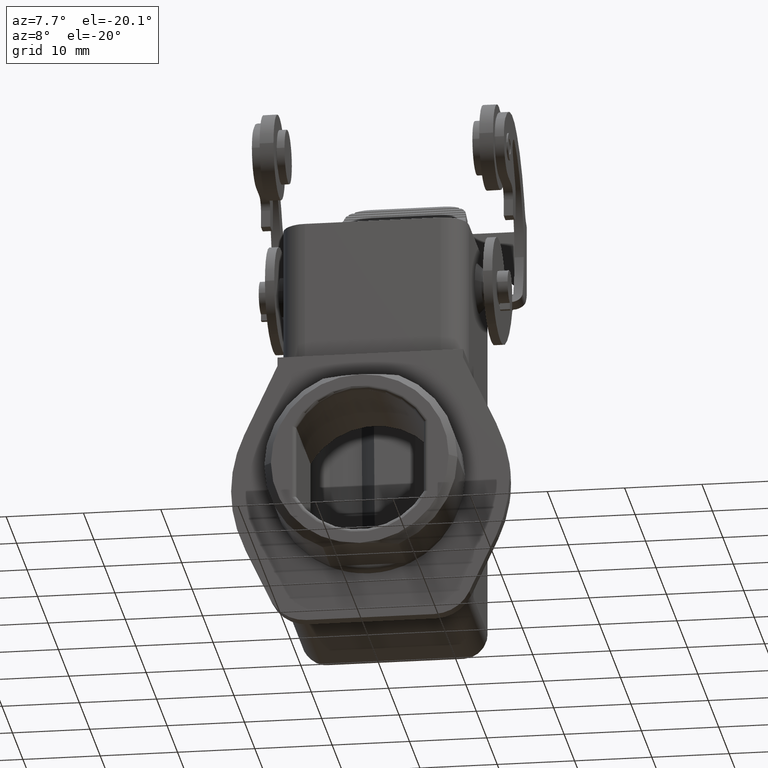
[diagram: clean part render]
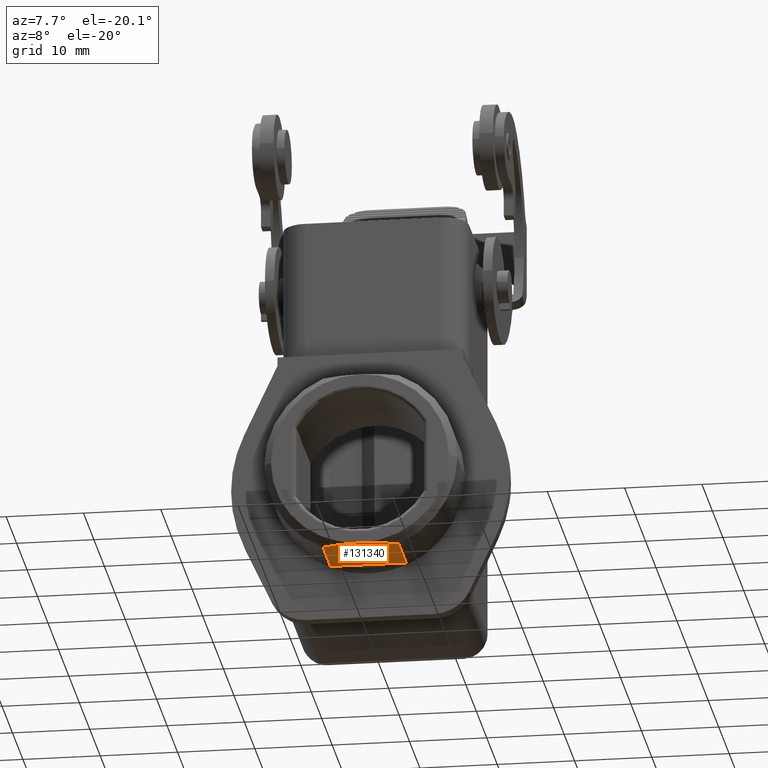
[diagram: same view with one face highlighted and labeled with its STEP entity id]
A machine part, auxiliary view. The second image highlights one B-rep face of the part: STEP entity #131340.
In plain terms, the highlighted planar face has unit normal (0, 0, -1).
Its self-contained STEP definition (entity closure, byte-faithful):
#110460=CARTESIAN_POINT('',(55.6223464855664,18.155443,-22.5000000938587
));
#110470=VERTEX_POINT('',#110460);
#110650=CARTESIAN_POINT('',(55.6223464855664,25.355443,-22.5000000938587
));
#110660=VERTEX_POINT('',#110650);
#110690=CARTESIAN_POINT('',(55.6223464855664,25.53544615,
-22.5000000938588));
#110700=DIRECTION('',(0.,-1.,0.));
#110710=VECTOR('',#110700,1.);
#110720=LINE('',#110690,#110710);
#110730=EDGE_CURVE('',#110660,#110470,#110720,.T.);
#130520=CARTESIAN_POINT('',(45.5766966359034,16.9353226324312,
-22.5000000938587));
#130530=DIRECTION('',(0.,0.,-1.));
#130540=DIRECTION('',(-1.,0.,-0.));
#130550=AXIS2_PLACEMENT_3D('',#130520,#130530,#130540);
#130560=PLANE('',#130550);
#130570=CARTESIAN_POINT('',(0.,25.355443,-22.5000000938587));
#130580=DIRECTION('',(1.,-0.,0.));
#130590=VECTOR('',#130580,1.);
#130600=LINE('',#130570,#130590);
#130610=CARTESIAN_POINT('',(45.8243875144336,25.355443,-22.5000000938587
));
#130620=VERTEX_POINT('',#130610);
#130630=EDGE_CURVE('',#130620,#110660,#130600,.T.);
#130640=ORIENTED_EDGE('',*,*,#130630,.T.);
#130650=CARTESIAN_POINT('',(45.8243875144336,25.53544615,
-22.5000000938588));
#130660=DIRECTION('',(0.,-1.,0.));
#130670=VECTOR('',#130660,1.);
#130680=LINE('',#130650,#130670);
#130690=CARTESIAN_POINT('',(45.8243875144336,18.155443,-22.5000000938587
));
#130700=VERTEX_POINT('',#130690);
#130710=EDGE_CURVE('',#130620,#130700,#130680,.T.);
#130720=ORIENTED_EDGE('',*,*,#130710,.F.);
#130730=CARTESIAN_POINT('',(50.7233670000001,17.155443,-22.5000000938587
));
#130740=CARTESIAN_POINT('',(50.6180437117394,17.155443,-22.5000000938587
));
#130750=CARTESIAN_POINT('',(50.5127129999162,17.1568907338084,
-22.5000000938587));
#130760=CARTESIAN_POINT('',(50.3021566374851,17.1626730329106,
-22.5000000938587));
#130770=CARTESIAN_POINT('',(50.1969313758444,17.1670075713359,
-22.5000000938587));
#130780=CARTESIAN_POINT('',(49.9867046962506,17.1785352825323,
-22.5000000938587));
#130790=CARTESIAN_POINT('',(49.8817036500835,17.1857284008985,
-22.5000000938587));
#130800=CARTESIAN_POINT('',(49.6720399166907,17.2029263989715,
-22.5000000938587));
#130810=CARTESIAN_POINT('',(49.5673775736549,17.2129312004244,
-22.5000000938587));
#130820=CARTESIAN_POINT('',(49.3584992675122,17.2356885005063,
-22.5000000938587));
#130830=CARTESIAN_POINT('',(49.2542836127377,17.2484409020546,
-22.5000000938587));
#130840=CARTESIAN_POINT('',(49.0463981672295,17.2766141455567,
-22.5000000938587));
#130850=CARTESIAN_POINT('',(48.9427286432746,17.2920348774079,
-22.5000000938587));
#130860=CARTESIAN_POINT('',(48.6326298871405,17.3421685741657,
-22.5000000938587));
#130870=CARTESIAN_POINT('',(48.4273379480722,17.3807144512656,
-22.5000000938587));
#130880=CARTESIAN_POINT('',(48.0191422990184,17.4674300463916,
-22.5000000938587));
#130890=CARTESIAN_POINT('',(47.8159387763015,17.5156727299962,
-22.5000000938587));
#130900=CARTESIAN_POINT('',(47.4115896976303,17.6212183353656,
-22.5000000938587));
#130910=CARTESIAN_POINT('',(47.2104458143226,17.6785200749335,
-22.5000000938587));
#130920=CARTESIAN_POINT('',(46.8103964853496,17.8014343296201,
-22.5000000938587));
#130930=CARTESIAN_POINT('',(46.6114918589254,17.867045879433,
-22.5000000938587));
#130940=CARTESIAN_POINT('',(46.2160918443598,18.0057975310961,
-22.5000000938587));
#130950=CARTESIAN_POINT('',(46.0195966604205,18.0789369518706,
-22.5000000938587));
#130960=CARTESIAN_POINT('',(45.8243875144336,18.155443,-22.5000000938587
));
#130970=B_SPLINE_CURVE_WITH_KNOTS('',3,(#130730,#130740,#130750,#130760,
#130770,#130780,#130790,#130800,#130810,#130820,#130830,#130840,#130850,
#130860,#130870,#130880,#130890,#130900,#130910,#130920,#130930,#130940,
#130950,#130960),.UNSPECIFIED.,.F.,.F.,(4,2,2,2,2,2,2,2,2,2,2,4),(0.,
0.315981809269663,0.631885416014997,0.947587740386869,1.26296829145767,
1.57791134567185,1.8923083841752,2.51922618663112,3.1457241750264,
3.77307246258338,4.4012914020533,5.03014225467061),.UNSPECIFIED.);
#130980=CARTESIAN_POINT('',(50.7233670000001,17.155443,-22.5000000938587
));
#130990=VERTEX_POINT('',#130980);
#131000=EDGE_CURVE('',#130990,#130700,#130970,.T.);
#131010=ORIENTED_EDGE('',*,*,#131000,.T.);
#131020=CARTESIAN_POINT('',(55.6223464855664,18.155443,-22.5000000938587
));
#131030=CARTESIAN_POINT('',(55.4270183321664,18.0788903106831,
-22.5000000938587));
#131040=CARTESIAN_POINT('',(55.2303843931778,18.0057013499886,
-22.5000000938588));
#131050=CARTESIAN_POINT('',(54.8346880583029,17.8668571839463,
-22.5000000938588));
#131060=CARTESIAN_POINT('',(54.6356259359848,17.8012027186816,
-22.5000000938587));
#131070=CARTESIAN_POINT('',(54.2352655442392,17.6782189070248,
-22.5000000938587));
#131080=CARTESIAN_POINT('',(54.0339682057835,17.6208905946407,
-22.5000000938587));
#131090=CARTESIAN_POINT('',(53.6293406479991,17.5153139323387,
-22.5000000938587));
#131100=CARTESIAN_POINT('',(53.4260122629977,17.4670668342911,
-22.5000000938566));
#131110=CARTESIAN_POINT('',(53.1196525206581,17.4020265820659,
-22.5000000938566));
#131120=CARTESIAN_POINT('',(53.0173050179206,17.381567729166,
-22.5000000938588));
#131130=CARTESIAN_POINT('',(52.8121985723977,17.343174622977,
-22.5000000938588));
#131140=CARTESIAN_POINT('',(52.7093075399874,17.3252152125388,
-22.5000000938587));
#131150=CARTESIAN_POINT('',(52.5028683798284,17.291862086083,
-22.5000000938587));
#131160=CARTESIAN_POINT('',(52.3993264778966,17.2764695704059,
-22.5000000938587));
#131170=CARTESIAN_POINT('',(52.1916790670939,17.248344221858,
-22.5000000938587));
#131180=CARTESIAN_POINT('',(52.0875738184314,17.2356115024837,
-22.5000000938587));
#131190=CARTESIAN_POINT('',(51.8788942006523,17.2128858591603,
-22.5000000938587));
#131200=CARTESIAN_POINT('',(51.7743201342187,17.2028930362683,
-22.5000000938588));
#131210=CARTESIAN_POINT('',(51.5648070971833,17.1857127847645,
-22.5000000938588));
#131220=CARTESIAN_POINT('',(51.4598684664406,17.1785254388973,
-22.5000000938587));
#131230=CARTESIAN_POINT('',(51.2497381503096,17.1670050611353,
-22.5000000938587));
#131240=CARTESIAN_POINT('',(51.1445468338831,17.1626720885269,
-22.5000000938587));
#131250=CARTESIAN_POINT('',(50.934028362201,17.1568910419661,
-22.5000000938587));
#131260=CARTESIAN_POINT('',(50.8287015944632,17.1554429999933,
-22.5000000938587));
#131270=CARTESIAN_POINT('',(50.7233670000001,17.155443,-22.5000000938587
));
#131280=B_SPLINE_CURVE_WITH_KNOTS('',3,(#131020,#131030,#131040,#131050,
#131060,#131070,#131080,#131090,#131100,#131110,#131120,#131130,#131140,
#131150,#131160,#131170,#131180,#131190,#131200,#131210,#131220,#131230,
#131240,#131250,#131260,#131270),.UNSPECIFIED.,.F.,.F.,(4,2,2,2,2,2,2,2,
2,2,2,2,4),(0.,0.629281119191105,1.25797707285187,1.88577775296097,
2.51263115289653,2.82574303573,3.13907369355974,3.45308256448213,
3.7676920095986,4.08280724869928,4.39832277695503,4.71412513676614,
5.03009534798825),.UNSPECIFIED.);
#131290=EDGE_CURVE('',#110470,#130990,#131280,.T.);
#131300=ORIENTED_EDGE('',*,*,#131290,.T.);
#131310=ORIENTED_EDGE('',*,*,#110730,.T.);
#131320=EDGE_LOOP('',(#131310,#131300,#131010,#130720,#130640));
#131330=FACE_OUTER_BOUND('',#131320,.T.);
#131340=ADVANCED_FACE('',(#131330),#130560,.T.);